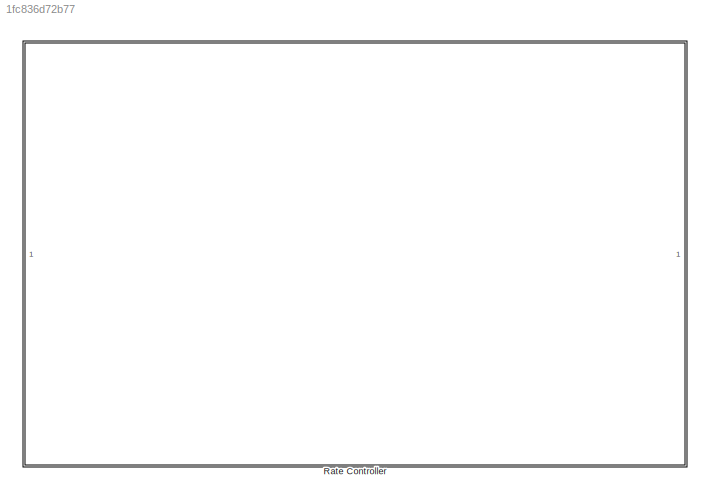
MODEL slx_1fc836d72b77
KIND model
CONFIG AbsTol = auto
CONFIG EnableMultiTasking = off
CONFIG FixedStep = auto
CONFIG MaxStep = auto
CONFIG MinStep = auto
CONFIG RelTol = 1e-3
CONFIG SampleTimeConstraint = Unconstrained
CONFIG SolverName = VariableStepAuto
CONFIG StartTime = 0.0
CONFIG StopTime = 10.0
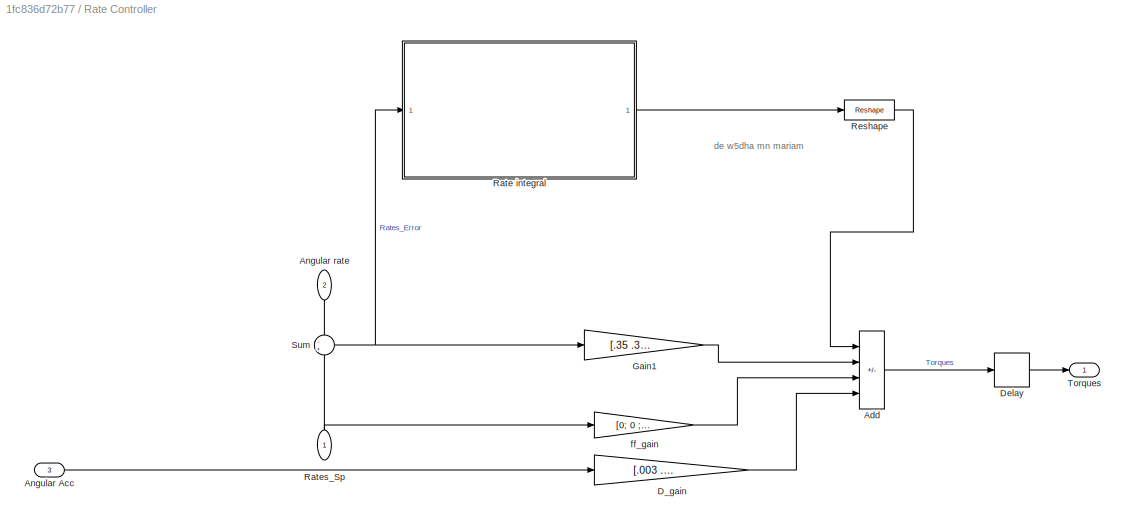
BLOCK [SubSystem] Rate Controller  
BLOCK [Sum] Rate Controller  /Add
  IconShape = rectangular
  Inputs = +++-
BLOCK [Inport] Rate Controller  /Angular Acc
  Port = 3
BLOCK [Inport] Rate Controller  /Angular rate
  NameLocation = left
  Port = 2
BLOCK [Gain] Rate Controller  /D_gain
  Gain = [.003 .003 0]
BLOCK [Delay] Rate Controller  /Delay
  DelayLength = 1
  InputPortMap = u0
BLOCK [Gain] Rate Controller  /Gain1
  Gain = [.35 .3 .3]
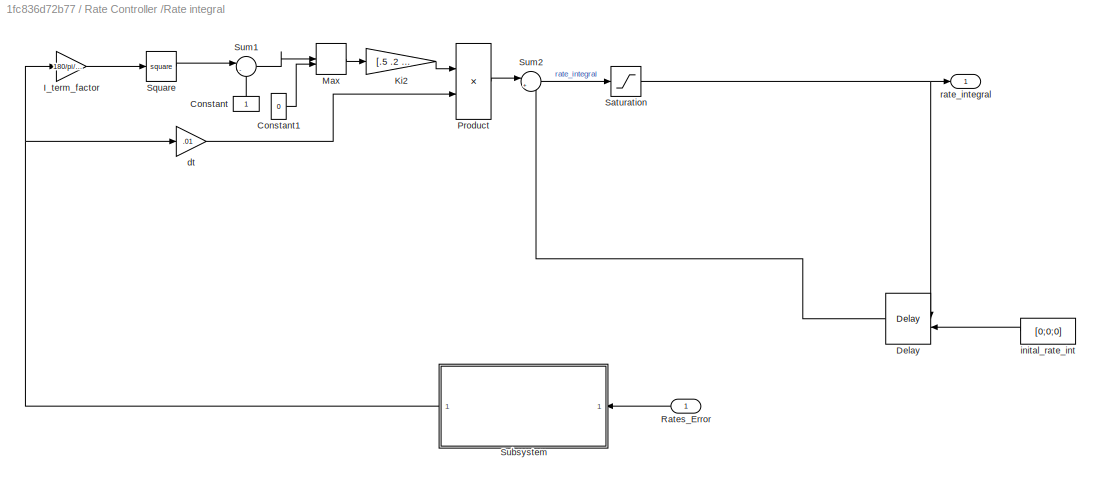
BLOCK [SubSystem] Rate Controller  /Rate integral
BLOCK [Constant] Rate Controller  /Rate integral/Constant
  NameLocation = right
BLOCK [Constant] Rate Controller  /Rate integral/Constant1
  Value = 0
BLOCK [Delay] Rate Controller  /Rate integral/Delay
  DelayLength = 1
  InitialCondition = [0;0;0]
  InitialConditionSource = Input port
  InputPortMap = u0,p4
  NameLocation = top
BLOCK [Gain] Rate Controller  /Rate integral/I_term_factor
  Gain = 180/pi/400
BLOCK [Gain] Rate Controller  /Rate integral/Ki2
  Gain = [.5 .2 .17]
BLOCK [MinMax] Rate Controller  /Rate integral/Max
  Function = max
  Inputs = 2
BLOCK [Product] Rate Controller  /Rate integral/Product
BLOCK [Inport] Rate Controller  /Rate integral/Rates_Error
  NameLocation = top
BLOCK [Saturate] Rate Controller  /Rate integral/Saturation
  LowerLimit = -0.3
  UpperLimit = 0.3
BLOCK [Math] Rate Controller  /Rate integral/Square
  Operator = square
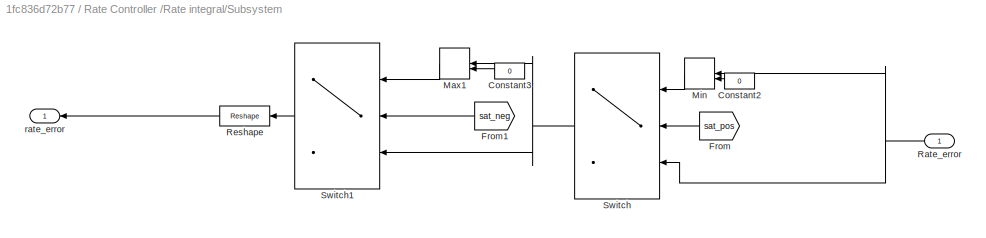
BLOCK [SubSystem] Rate Controller  /Rate integral/Subsystem
  NameLocation = top
BLOCK [Constant] Rate Controller  /Rate integral/Subsystem/Constant2
  NameLocation = top
  Value = 0
BLOCK [Constant] Rate Controller  /Rate integral/Subsystem/Constant3
  NameLocation = top
  Value = 0
BLOCK [From] Rate Controller  /Rate integral/Subsystem/From
  GotoTag = sat_pos
  NameLocation = top
  TagVisibility = global
BLOCK [From] Rate Controller  /Rate integral/Subsystem/From1
  GotoTag = sat_neg
  NameLocation = top
  TagVisibility = global
BLOCK [MinMax] Rate Controller  /Rate integral/Subsystem/Max1
  Function = max
  Inputs = 2
  NameLocation = top
BLOCK [MinMax] Rate Controller  /Rate integral/Subsystem/Min
  Inputs = 2
  NameLocation = top
BLOCK [Inport] Rate Controller  /Rate integral/Subsystem/Rate_error
BLOCK [Reshape] Rate Controller  /Rate integral/Subsystem/Reshape
  NameLocation = top
  OutputDimensionality = Customize
  OutputDimensions = [3]
BLOCK [Switch] Rate Controller  /Rate integral/Subsystem/Switch
  Criteria = u2 ~= 0
  InputSameDT = off
  NameLocation = top
  SaturateOnIntegerOverflow = off
BLOCK [Switch] Rate Controller  /Rate integral/Subsystem/Switch1
  Criteria = u2 ~= 0
  InputSameDT = off
  NameLocation = top
  SaturateOnIntegerOverflow = off
BLOCK [Outport] Rate Controller  /Rate integral/Subsystem/rate_error
  NameLocation = top
BLOCK [Sum] Rate Controller  /Rate integral/Sum1
  Inputs = |-+
BLOCK [Sum] Rate Controller  /Rate integral/Sum2
  Inputs = |++
BLOCK [Gain] Rate Controller  /Rate integral/dt
  Gain = .01
BLOCK [Constant] Rate Controller  /Rate integral/inital_rate_int
  NameLocation = top
  Value = [0;0;0]
BLOCK [Outport] Rate Controller  /Rate integral/rate_integral
BLOCK [Inport] Rate Controller  /Rates_Sp 
  NameLocation = right
BLOCK [Reshape] Rate Controller  /Reshape
  OutputDimensionality = Customize
  OutputDimensions = [3]
BLOCK [Sum] Rate Controller  /Sum
  Inputs = -+
BLOCK [Outport] Rate Controller  /Torques
BLOCK [Gain] Rate Controller  /ff_gain
  Gain = [0; 0 ;0]
ANNOTATION Rate Controller  : de w5dha mn mariam
LINE Rate Controller  /Add:1 -> Rate Controller  /Delay:1
LINE Rate Controller  /Angular Acc:1 -> Rate Controller  /D_gain:1
LINE Rate Controller  /Angular rate:1 -> Rate Controller  /Sum:1
LINE Rate Controller  /D_gain:1 -> Rate Controller  /Add:4
LINE Rate Controller  /Delay:1 -> Rate Controller  /Torques:1
LINE Rate Controller  /Gain1:1 -> Rate Controller  /Add:2
LINE Rate Controller  /Rate integral/Constant1:1 -> Rate Controller  /Rate integral/Max:2
LINE Rate Controller  /Rate integral/Constant:1 -> Rate Controller  /Rate integral/Sum1:2
LINE Rate Controller  /Rate integral/Delay:1 -> Rate Controller  /Rate integral/Sum2:2
LINE Rate Controller  /Rate integral/I_term_factor:1 -> Rate Controller  /Rate integral/Square:1
LINE Rate Controller  /Rate integral/Ki2:1 -> Rate Controller  /Rate integral/Product:1
LINE Rate Controller  /Rate integral/Max:1 -> Rate Controller  /Rate integral/Ki2:1
LINE Rate Controller  /Rate integral/Product:1 -> Rate Controller  /Rate integral/Sum2:1
LINE Rate Controller  /Rate integral/Rates_Error:1 -> Rate Controller  /Rate integral/Subsystem:1
NET Rate Controller  /Rate integral/Saturation:1 -> Rate Controller  /Rate integral/Delay:1, Rate Controller  /Rate integral/rate_integral:1
LINE Rate Controller  /Rate integral/Square:1 -> Rate Controller  /Rate integral/Sum1:1
LINE Rate Controller  /Rate integral/Subsystem/Constant2:1 -> Rate Controller  /Rate integral/Subsystem/Min:2
LINE Rate Controller  /Rate integral/Subsystem/Constant3:1 -> Rate Controller  /Rate integral/Subsystem/Max1:2
LINE Rate Controller  /Rate integral/Subsystem/From1:1 -> Rate Controller  /Rate integral/Subsystem/Switch1:2
LINE Rate Controller  /Rate integral/Subsystem/From:1 -> Rate Controller  /Rate integral/Subsystem/Switch:2
LINE Rate Controller  /Rate integral/Subsystem/Max1:1 -> Rate Controller  /Rate integral/Subsystem/Switch1:1
LINE Rate Controller  /Rate integral/Subsystem/Min:1 -> Rate Controller  /Rate integral/Subsystem/Switch:1
NET Rate Controller  /Rate integral/Subsystem/Rate_error:1 -> Rate Controller  /Rate integral/Subsystem/Min:1, Rate Controller  /Rate integral/Subsystem/Switch:3
LINE Rate Controller  /Rate integral/Subsystem/Reshape:1 -> Rate Controller  /Rate integral/Subsystem/rate_error:1
LINE Rate Controller  /Rate integral/Subsystem/Switch1:1 -> Rate Controller  /Rate integral/Subsystem/Reshape:1
NET Rate Controller  /Rate integral/Subsystem/Switch:1 -> Rate Controller  /Rate integral/Subsystem/Max1:1, Rate Controller  /Rate integral/Subsystem/Switch1:3
NET Rate Controller  /Rate integral/Subsystem:1 -> Rate Controller  /Rate integral/I_term_factor:1, Rate Controller  /Rate integral/dt:1
LINE Rate Controller  /Rate integral/Sum1:1 -> Rate Controller  /Rate integral/Max:1
LINE Rate Controller  /Rate integral/Sum2:1 -> Rate Controller  /Rate integral/Saturation:1
LINE Rate Controller  /Rate integral/dt:1 -> Rate Controller  /Rate integral/Product:2
LINE Rate Controller  /Rate integral/inital_rate_int:1 -> Rate Controller  /Rate integral/Delay:2
LINE Rate Controller  /Rate integral:1 -> Rate Controller  /Reshape:1
NET Rate Controller  /Rates_Sp :1 -> Rate Controller  /Sum:2, Rate Controller  /ff_gain:1
LINE Rate Controller  /Reshape:1 -> Rate Controller  /Add:1
NET Rate Controller  /Sum:1 -> Rate Controller  /Gain1:1, Rate Controller  /Rate integral:1
LINE Rate Controller  /ff_gain:1 -> Rate Controller  /Add:3
note: NET lines group one-source signal fan-out (src -> all destinations, sorted); 1:1 wires keep LINE
